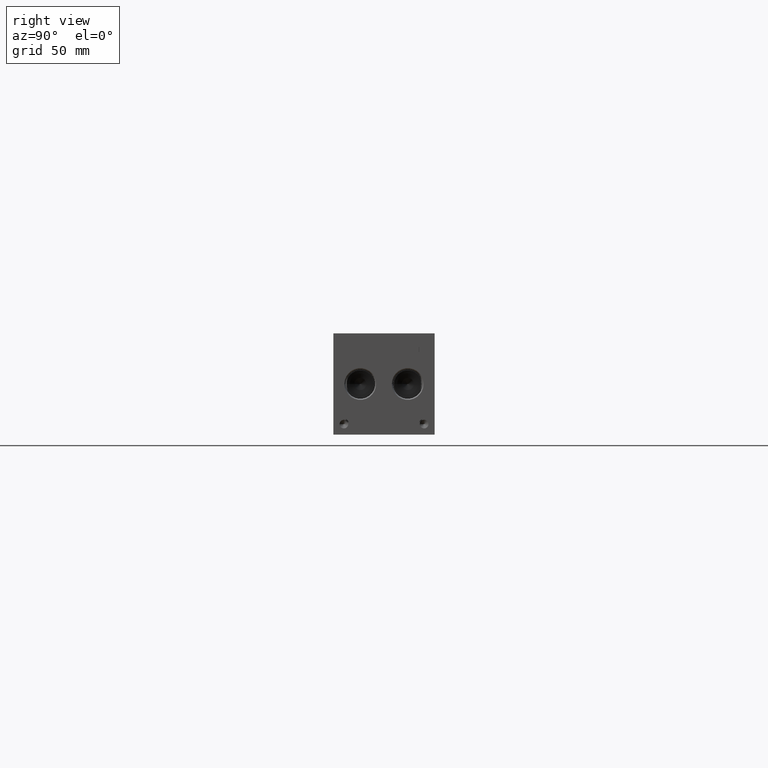
[diagram: clean part render]
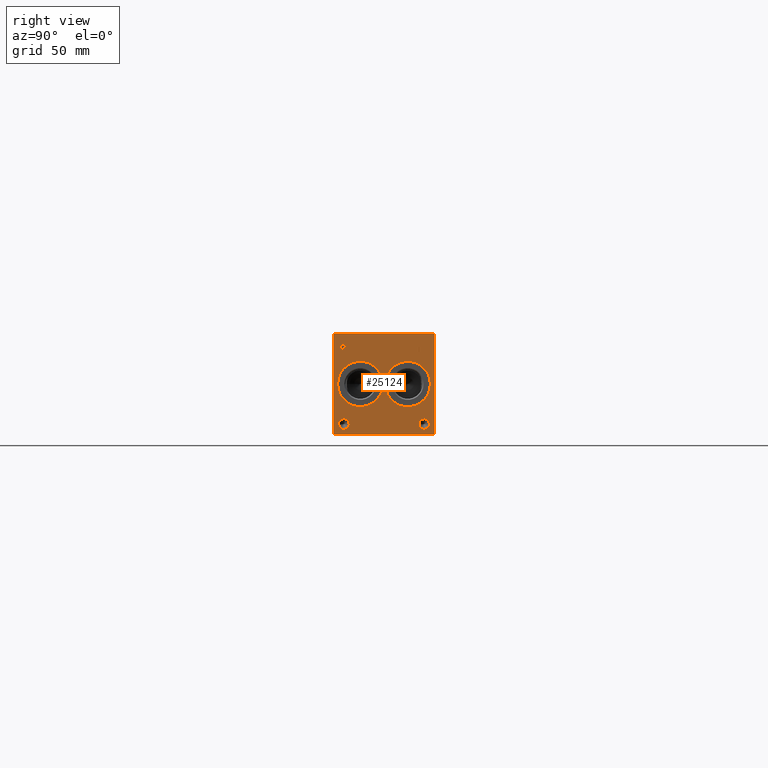
[diagram: same view with one face highlighted and labeled with its STEP entity id]
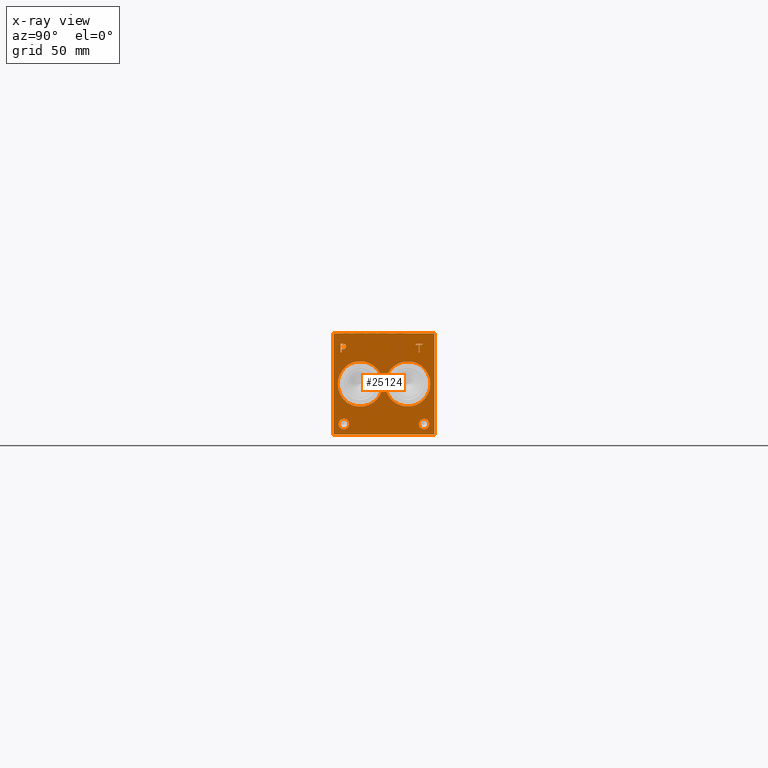
[diagram: x-ray of the same camera — body ghosted, the highlighted face saturated]
A machine part, right view. The second image highlights one B-rep face of the part: STEP entity #25124.
The next image is the same camera in x-ray: the body ghosted, the highlighted face saturated — about 0% of this face is hidden behind the body in this view.
In plain terms, the highlighted planar face has unit normal (1, 0, 0).
Its self-contained STEP definition (entity closure, byte-faithful):
#519=CIRCLE('',#26279,17.0688);
#520=CIRCLE('',#26280,17.0688);
#521=CIRCLE('',#26281,17.0688);
#522=CIRCLE('',#26282,17.0688);
#523=CIRCLE('',#26283,3.9624);
#524=CIRCLE('',#26284,3.9624);
#525=CIRCLE('',#26285,3.9624);
#526=CIRCLE('',#26286,3.9624);
#1564=FACE_BOUND('',#4767,.T.);
#1565=FACE_BOUND('',#4768,.T.);
#1566=FACE_BOUND('',#4769,.T.);
#1567=FACE_BOUND('',#4770,.T.);
#1568=FACE_BOUND('',#4771,.T.);
#1569=FACE_BOUND('',#4772,.T.);
#2267=B_SPLINE_CURVE_WITH_KNOTS('',2,(#41512,#41513,#41514,#41515),
 .UNSPECIFIED.,.F.,.F.,(3,1,3),(0.,1.,2.),.UNSPECIFIED.);
#2269=B_SPLINE_CURVE_WITH_KNOTS('',2,(#41533,#41534,#41535,#41536),
 .UNSPECIFIED.,.F.,.F.,(3,1,3),(0.,1.,2.),.UNSPECIFIED.);
#2271=B_SPLINE_CURVE_WITH_KNOTS('',2,(#41582,#41583,#41584,#41585),
 .UNSPECIFIED.,.F.,.F.,(3,1,3),(0.,1.,2.),.UNSPECIFIED.);
#2273=B_SPLINE_CURVE_WITH_KNOTS('',2,(#41600,#41601,#41602,#41603),
 .UNSPECIFIED.,.F.,.F.,(3,1,3),(0.,1.,2.),.UNSPECIFIED.);
#3311=FACE_OUTER_BOUND('',#4766,.T.);
#4766=EDGE_LOOP('',(#19896,#19897,#19898,#19899));
#4767=EDGE_LOOP('',(#19900,#19901));
#4768=EDGE_LOOP('',(#19902,#19903));
#4769=EDGE_LOOP('',(#19904,#19905));
#4770=EDGE_LOOP('',(#19906,#19907));
#4771=EDGE_LOOP('',(#19908,#19909,#19910,#19911,#19912,#19913,#19914,#19915));
#4772=EDGE_LOOP('',(#19916,#19917,#19918,#19919,#19920,#19921,#19922,#19923,
#19924));
#5831=LINE('',#36068,#7900);
#7065=LINE('',#41545,#9134);
#7068=LINE('',#41551,#9137);
#7071=LINE('',#41557,#9140);
#7074=LINE('',#41563,#9143);
#7077=LINE('',#41569,#9146);
#7081=LINE('',#41611,#9150);
#7082=LINE('',#41613,#9151);
#7083=LINE('',#41614,#9152);
#7084=LINE('',#41633,#9153);
#7085=LINE('',#41635,#9154);
#7086=LINE('',#41637,#9155);
#7087=LINE('',#41639,#9156);
#7088=LINE('',#41641,#9157);
#7089=LINE('',#41643,#9158);
#7090=LINE('',#41645,#9159);
#7091=LINE('',#41646,#9160);
#7900=VECTOR('',#28225,10.);
#9134=VECTOR('',#30389,10.);
#9137=VECTOR('',#30394,10.);
#9140=VECTOR('',#30399,10.);
#9143=VECTOR('',#30404,10.);
#9146=VECTOR('',#30409,10.);
#9150=VECTOR('',#30417,10.);
#9151=VECTOR('',#30418,10.);
#9152=VECTOR('',#30419,10.);
#9153=VECTOR('',#30436,10.);
#9154=VECTOR('',#30437,10.);
#9155=VECTOR('',#30438,10.);
#9156=VECTOR('',#30439,10.);
#9157=VECTOR('',#30440,10.);
#9158=VECTOR('',#30441,10.);
#9159=VECTOR('',#30442,10.);
#9160=VECTOR('',#30443,10.);
#9996=VERTEX_POINT('',#36065);
#9997=VERTEX_POINT('',#36067);
#11081=VERTEX_POINT('',#41510);
#11082=VERTEX_POINT('',#41511);
#11085=VERTEX_POINT('',#41532);
#11087=VERTEX_POINT('',#41544);
#11089=VERTEX_POINT('',#41550);
#11091=VERTEX_POINT('',#41556);
#11093=VERTEX_POINT('',#41562);
#11095=VERTEX_POINT('',#41568);
#11097=VERTEX_POINT('',#41581);
#11099=VERTEX_POINT('',#41610);
#11100=VERTEX_POINT('',#41612);
#11101=VERTEX_POINT('',#41615);
#11102=VERTEX_POINT('',#41616);
#11103=VERTEX_POINT('',#41619);
#11104=VERTEX_POINT('',#41620);
#11105=VERTEX_POINT('',#41623);
#11106=VERTEX_POINT('',#41624);
#11107=VERTEX_POINT('',#41627);
#11108=VERTEX_POINT('',#41628);
#11109=VERTEX_POINT('',#41631);
#11110=VERTEX_POINT('',#41632);
#11111=VERTEX_POINT('',#41634);
#11112=VERTEX_POINT('',#41636);
#11113=VERTEX_POINT('',#41638);
#11114=VERTEX_POINT('',#41640);
#11115=VERTEX_POINT('',#41642);
#11116=VERTEX_POINT('',#41644);
#12673=EDGE_CURVE('',#9996,#9997,#5831,.T.);
#14278=EDGE_CURVE('',#11081,#11082,#2267,.T.);
#14282=EDGE_CURVE('',#11085,#11081,#2269,.T.);
#14285=EDGE_CURVE('',#11087,#11085,#7065,.T.);
#14288=EDGE_CURVE('',#11089,#11087,#7068,.T.);
#14291=EDGE_CURVE('',#11091,#11089,#7071,.T.);
#14294=EDGE_CURVE('',#11093,#11091,#7074,.T.);
#14297=EDGE_CURVE('',#11095,#11093,#7077,.T.);
#14300=EDGE_CURVE('',#11097,#11095,#2271,.T.);
#14303=EDGE_CURVE('',#11082,#11097,#2273,.T.);
#14305=EDGE_CURVE('',#9996,#11099,#7081,.T.);
#14306=EDGE_CURVE('',#11099,#11100,#7082,.T.);
#14307=EDGE_CURVE('',#9997,#11100,#7083,.T.);
#14308=EDGE_CURVE('',#11101,#11102,#519,.T.);
#14309=EDGE_CURVE('',#11102,#11101,#520,.T.);
#14310=EDGE_CURVE('',#11103,#11104,#521,.T.);
#14311=EDGE_CURVE('',#11104,#11103,#522,.T.);
#14312=EDGE_CURVE('',#11105,#11106,#523,.T.);
#14313=EDGE_CURVE('',#11106,#11105,#524,.T.);
#14314=EDGE_CURVE('',#11107,#11108,#525,.T.);
#14315=EDGE_CURVE('',#11108,#11107,#526,.T.);
#14316=EDGE_CURVE('',#11109,#11110,#7084,.T.);
#14317=EDGE_CURVE('',#11110,#11111,#7085,.T.);
#14318=EDGE_CURVE('',#11111,#11112,#7086,.T.);
#14319=EDGE_CURVE('',#11112,#11113,#7087,.T.);
#14320=EDGE_CURVE('',#11113,#11114,#7088,.T.);
#14321=EDGE_CURVE('',#11114,#11115,#7089,.T.);
#14322=EDGE_CURVE('',#11115,#11116,#7090,.T.);
#14323=EDGE_CURVE('',#11116,#11109,#7091,.T.);
#19896=ORIENTED_EDGE('',*,*,#14305,.T.);
#19897=ORIENTED_EDGE('',*,*,#14306,.T.);
#19898=ORIENTED_EDGE('',*,*,#14307,.F.);
#19899=ORIENTED_EDGE('',*,*,#12673,.F.);
#19900=ORIENTED_EDGE('',*,*,#14308,.T.);
#19901=ORIENTED_EDGE('',*,*,#14309,.T.);
#19902=ORIENTED_EDGE('',*,*,#14310,.T.);
#19903=ORIENTED_EDGE('',*,*,#14311,.T.);
#19904=ORIENTED_EDGE('',*,*,#14312,.T.);
#19905=ORIENTED_EDGE('',*,*,#14313,.T.);
#19906=ORIENTED_EDGE('',*,*,#14314,.T.);
#19907=ORIENTED_EDGE('',*,*,#14315,.T.);
#19908=ORIENTED_EDGE('',*,*,#14316,.T.);
#19909=ORIENTED_EDGE('',*,*,#14317,.T.);
#19910=ORIENTED_EDGE('',*,*,#14318,.T.);
#19911=ORIENTED_EDGE('',*,*,#14319,.T.);
#19912=ORIENTED_EDGE('',*,*,#14320,.T.);
#19913=ORIENTED_EDGE('',*,*,#14321,.T.);
#19914=ORIENTED_EDGE('',*,*,#14322,.T.);
#19915=ORIENTED_EDGE('',*,*,#14323,.T.);
#19916=ORIENTED_EDGE('',*,*,#14278,.T.);
#19917=ORIENTED_EDGE('',*,*,#14303,.T.);
#19918=ORIENTED_EDGE('',*,*,#14300,.T.);
#19919=ORIENTED_EDGE('',*,*,#14297,.T.);
#19920=ORIENTED_EDGE('',*,*,#14294,.T.);
#19921=ORIENTED_EDGE('',*,*,#14291,.T.);
#19922=ORIENTED_EDGE('',*,*,#14288,.T.);
#19923=ORIENTED_EDGE('',*,*,#14285,.T.);
#19924=ORIENTED_EDGE('',*,*,#14282,.T.);
#23487=PLANE('',#26278);
#25124=ADVANCED_FACE('',(#3311,#1564,#1565,#1566,#1567,#1568,#1569),#23487,
 .T.);
#26278=AXIS2_PLACEMENT_3D('',#41609,#30415,#30416);
#26279=AXIS2_PLACEMENT_3D('',#41617,#30420,#30421);
#26280=AXIS2_PLACEMENT_3D('',#41618,#30422,#30423);
#26281=AXIS2_PLACEMENT_3D('',#41621,#30424,#30425);
#26282=AXIS2_PLACEMENT_3D('',#41622,#30426,#30427);
#26283=AXIS2_PLACEMENT_3D('',#41625,#30428,#30429);
#26284=AXIS2_PLACEMENT_3D('',#41626,#30430,#30431);
#26285=AXIS2_PLACEMENT_3D('',#41629,#30432,#30433);
#26286=AXIS2_PLACEMENT_3D('',#41630,#30434,#30435);
#28225=DIRECTION('',(0.,0.,1.));
#30389=DIRECTION('',(0.,1.,0.));
#30394=DIRECTION('',(0.,0.,1.));
#30399=DIRECTION('',(0.,-1.,0.));
#30404=DIRECTION('',(0.,0.,-1.));
#30409=DIRECTION('',(0.,-1.,0.));
#30415=DIRECTION('center_axis',(1.,0.,0.));
#30416=DIRECTION('ref_axis',(0.,1.,0.));
#30417=DIRECTION('',(0.,1.,0.));
#30418=DIRECTION('',(0.,0.,1.));
#30419=DIRECTION('',(0.,1.,0.));
#30420=DIRECTION('center_axis',(-1.,0.,0.));
#30421=DIRECTION('ref_axis',(0.,1.,0.));
#30422=DIRECTION('center_axis',(-1.,0.,0.));
#30423=DIRECTION('ref_axis',(0.,1.,0.));
#30424=DIRECTION('center_axis',(-1.,0.,0.));
#30425=DIRECTION('ref_axis',(0.,1.,0.));
#30426=DIRECTION('center_axis',(-1.,0.,0.));
#30427=DIRECTION('ref_axis',(0.,1.,0.));
#30428=DIRECTION('center_axis',(-1.,0.,0.));
#30429=DIRECTION('ref_axis',(0.,1.,0.));
#30430=DIRECTION('center_axis',(-1.,0.,0.));
#30431=DIRECTION('ref_axis',(0.,1.,0.));
#30432=DIRECTION('center_axis',(-1.,0.,0.));
#30433=DIRECTION('ref_axis',(0.,1.,0.));
#30434=DIRECTION('center_axis',(-1.,0.,0.));
#30435=DIRECTION('ref_axis',(0.,1.,0.));
#30436=DIRECTION('',(0.,-1.,0.));
#30437=DIRECTION('',(0.,0.,1.));
#30438=DIRECTION('',(0.,-1.,0.));
#30439=DIRECTION('',(0.,0.,1.));
#30440=DIRECTION('',(0.,1.,0.));
#30441=DIRECTION('',(0.,0.,-1.));
#30442=DIRECTION('',(0.,-1.,0.));
#30443=DIRECTION('',(0.,0.,-1.));
#36065=CARTESIAN_POINT('',(539.75,0.,0.));
#36067=CARTESIAN_POINT('',(539.75,0.,76.2));
#36068=CARTESIAN_POINT('',(539.75,0.,0.));
#41510=CARTESIAN_POINT('',(539.75,8.66306720235939,67.8662681439707));
#41511=CARTESIAN_POINT('',(539.75,9.41950965453199,66.3482373726039));
#41512=CARTESIAN_POINT('Ctrl Pts',(539.75,8.66306720235939,67.8662681439707));
#41513=CARTESIAN_POINT('Ctrl Pts',(539.75,9.01813202684857,67.6244123939564));
#41514=CARTESIAN_POINT('Ctrl Pts',(539.75,9.41950965453199,66.8782616758269));
#41515=CARTESIAN_POINT('Ctrl Pts',(539.75,9.41950965453199,66.3482373726039));
#41532=CARTESIAN_POINT('',(539.75,7.0009521543883,68.2624999046326));
#41533=CARTESIAN_POINT('Ctrl Pts',(539.75,7.0009521543883,68.2624999046326));
#41534=CARTESIAN_POINT('Ctrl Pts',(539.75,7.56699752676236,68.2624999046326));
#41535=CARTESIAN_POINT('Ctrl Pts',(539.75,8.35946104808603,68.0772486918556));
#41536=CARTESIAN_POINT('Ctrl Pts',(539.75,8.66306720235939,67.8662681439707));
#41544=CARTESIAN_POINT('',(539.75,5.40573337769779,68.2624999046326));
#41545=CARTESIAN_POINT('',(539.75,2.70286668884889,68.2624999046326));
#41550=CARTESIAN_POINT('',(539.75,5.40573337769779,61.9125));
#41551=CARTESIAN_POINT('',(539.75,5.40573337769779,30.95625));
#41556=CARTESIAN_POINT('',(539.75,6.24965556923729,61.9125));
#41557=CARTESIAN_POINT('',(539.75,3.12482778461864,61.9125));
#41562=CARTESIAN_POINT('',(539.75,6.24965556923729,64.2795988299279));
#41563=CARTESIAN_POINT('',(539.75,6.24965556923729,32.1397994149639));
#41568=CARTESIAN_POINT('',(539.75,6.96493108523723,64.2795988299279));
#41569=CARTESIAN_POINT('',(539.75,3.48246554261861,64.2795988299279));
#41581=CARTESIAN_POINT('',(539.75,8.8637560162011,64.9382698086904));
#41582=CARTESIAN_POINT('Ctrl Pts',(539.75,8.8637560162011,64.9382698086904));
#41583=CARTESIAN_POINT('Ctrl Pts',(539.75,8.53442052681983,64.6140801863307));
#41584=CARTESIAN_POINT('Ctrl Pts',(539.75,7.64418553208609,64.2795988299279));
#41585=CARTESIAN_POINT('Ctrl Pts',(539.75,6.96493108523723,64.2795988299279));
#41600=CARTESIAN_POINT('Ctrl Pts',(539.75,9.41950965453199,66.3482373726039));
#41601=CARTESIAN_POINT('Ctrl Pts',(539.75,9.41950965453199,65.9365680108774));
#41602=CARTESIAN_POINT('Ctrl Pts',(539.75,9.1261952343018,65.1955631597695));
#41603=CARTESIAN_POINT('Ctrl Pts',(539.75,8.8637560162011,64.9382698086904));
#41609=CARTESIAN_POINT('Origin',(539.75,0.,0.));
#41610=CARTESIAN_POINT('',(539.75,76.2,0.));
#41611=CARTESIAN_POINT('',(539.75,0.,0.));
#41612=CARTESIAN_POINT('',(539.75,76.2,76.2));
#41613=CARTESIAN_POINT('',(539.75,76.2,0.));
#41614=CARTESIAN_POINT('',(539.75,0.,76.2));
#41615=CARTESIAN_POINT('',(539.75,37.3126,38.1));
#41616=CARTESIAN_POINT('',(539.75,3.175,38.1));
#41617=CARTESIAN_POINT('Origin',(539.75,20.2438,38.1));
#41618=CARTESIAN_POINT('Origin',(539.75,20.2438,38.1));
#41619=CARTESIAN_POINT('',(539.75,73.025,38.1));
#41620=CARTESIAN_POINT('',(539.75,38.8874,38.1));
#41621=CARTESIAN_POINT('Origin',(539.75,55.9562,38.1));
#41622=CARTESIAN_POINT('Origin',(539.75,55.9562,38.1));
#41623=CARTESIAN_POINT('',(539.75,72.2376,7.9248));
#41624=CARTESIAN_POINT('',(539.75,64.3128,7.9248));
#41625=CARTESIAN_POINT('Origin',(539.75,68.2752,7.9248));
#41626=CARTESIAN_POINT('Origin',(539.75,68.2752,7.9248));
#41627=CARTESIAN_POINT('',(539.75,11.8872,7.9248));
#41628=CARTESIAN_POINT('',(539.75,3.9624,7.9248));
#41629=CARTESIAN_POINT('Origin',(539.75,7.9248,7.9248));
#41630=CARTESIAN_POINT('Origin',(539.75,7.9248,7.9248));
#41631=CARTESIAN_POINT('',(539.75,64.881665271453,61.9125));
#41632=CARTESIAN_POINT('',(539.75,64.0377430799135,61.9125));
#41633=CARTESIAN_POINT('',(539.75,32.4408326357265,61.9125));
#41634=CARTESIAN_POINT('',(539.75,64.0377430799135,67.5112033194816));
#41635=CARTESIAN_POINT('',(539.75,64.0377430799135,30.95625));
#41636=CARTESIAN_POINT('',(539.75,61.9073541329784,67.5112033194816));
#41637=CARTESIAN_POINT('',(539.75,32.0188715399567,67.5112033194816));
#41638=CARTESIAN_POINT('',(539.75,61.9073541329784,68.2624999046326));
#41639=CARTESIAN_POINT('',(539.75,61.9073541329784,33.7556016597408));
#41640=CARTESIAN_POINT('',(539.75,67.0120542183881,68.2624999046326));
#41641=CARTESIAN_POINT('',(539.75,30.9536770664892,68.2624999046326));
#41642=CARTESIAN_POINT('',(539.75,67.0120542183881,67.5112033194816));
#41643=CARTESIAN_POINT('',(539.75,67.0120542183881,34.1312499523163));
#41644=CARTESIAN_POINT('',(539.75,64.881665271453,67.5112033194816));
#41645=CARTESIAN_POINT('',(539.75,33.506027109194,67.5112033194816));
#41646=CARTESIAN_POINT('',(539.75,64.881665271453,33.7556016597408));